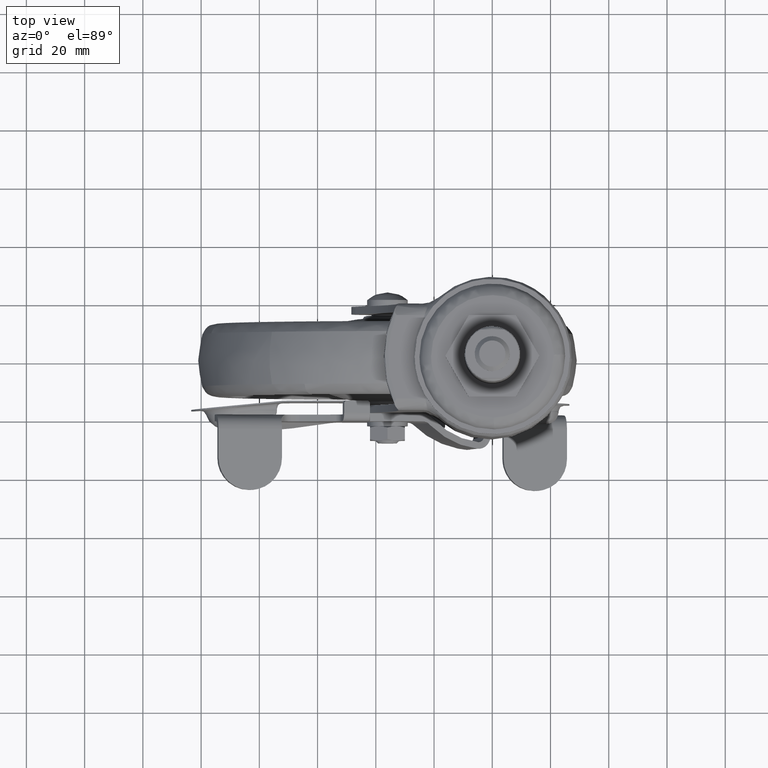
[diagram: clean part render]
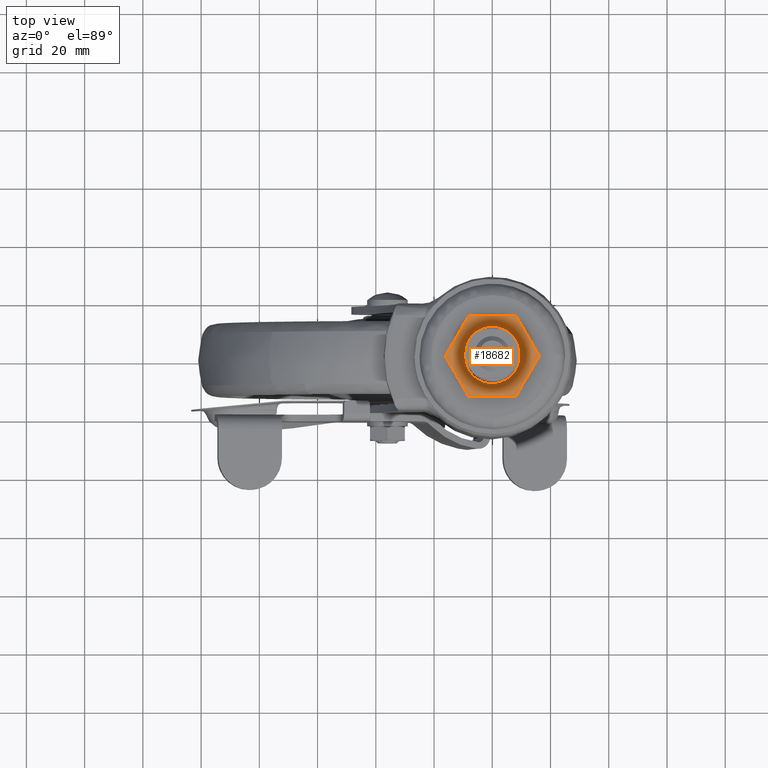
[diagram: same view with one face highlighted and labeled with its STEP entity id]
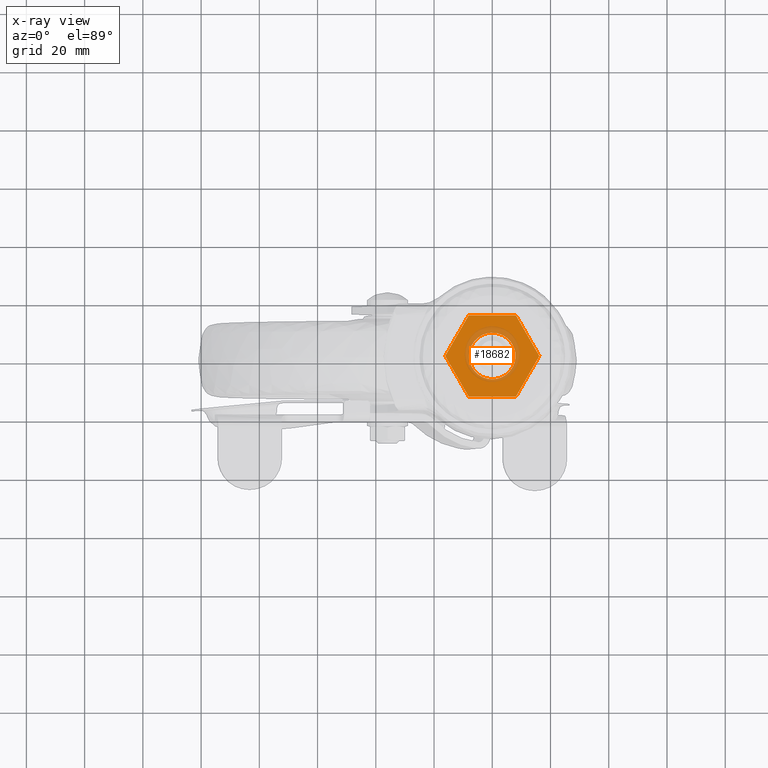
[diagram: x-ray of the same camera — body ghosted, the highlighted face saturated]
A machine part, top view. The second image highlights one B-rep face of the part: STEP entity #18682.
The next image is the same camera in x-ray: the body ghosted, the highlighted face saturated — about 18% of this face is hidden behind the body in this view.
In plain terms, the highlighted face is a freeform B-spline surface patch.
Its self-contained STEP definition (entity closure, byte-faithful):
#17958=CARTESIAN_POINT('',(-0.200789467446222,7.987476709836662,1.155402E-013));
#17959=VERTEX_POINT('',#17958);
#17960=CARTESIAN_POINT('',(7.990000000000000,0.0,0.0));
#17961=VERTEX_POINT('',#17960);
#17962=CARTESIAN_POINT('',(-0.200789467446222,7.987476709836662,1.155402E-013));
#17963=CARTESIAN_POINT('',(-0.100410590577392,7.990000000000000,1.136868E-013));
#17964=CARTESIAN_POINT('',(0.0,7.990000000000000,1.136868E-013));
#17965=CARTESIAN_POINT('',(7.990000000000000,7.990000000000000,1.136868E-013));
#17966=CARTESIAN_POINT('',(7.990000000000000,0.0,0.0));
#17974=(BOUNDED_CURVE()B_SPLINE_CURVE(2,(#17962,#17963,#17964,#17965,#17966),.UNSPECIFIED.,.F.,.U.)B_SPLINE_CURVE_WITH_KNOTS((3,2,3),(0.245579891598510,0.250000000000000,0.500000000000000),.UNSPECIFIED.)CURVE()GEOMETRIC_REPRESENTATION_ITEM()RATIONAL_B_SPLINE_CURVE((0.989826157294393,0.994821520891133,1.0,0.707106781186548,1.0))REPRESENTATION_ITEM(''));
#17975=EDGE_CURVE('',#17959,#17961,#17974,.T.);
#17994=CARTESIAN_POINT('',(-7.987476709773507,-0.200789467437675,1.155715E-013));
#17995=VERTEX_POINT('',#17994);
#18009=CARTESIAN_POINT('',(7.990000000000000,0.0,0.0));
#18010=CARTESIAN_POINT('',(7.990000000000000,-7.990000000000000,1.136868E-013));
#18011=CARTESIAN_POINT('',(0.0,-7.990000000000000,1.136868E-013));
#18012=CARTESIAN_POINT('',(-7.791671223066750,-7.990000000000001,1.136868E-013));
#18013=CARTESIAN_POINT('',(-7.987476709773507,-0.200789467437675,1.155715E-013));
#18021=(BOUNDED_CURVE()B_SPLINE_CURVE(2,(#18009,#18010,#18011,#18012,#18013),.UNSPECIFIED.,.F.,.U.)B_SPLINE_CURVE_WITH_KNOTS((3,2,3),(0.500000000000000,0.750000000000000,0.995579891598814),.UNSPECIFIED.)CURVE()GEOMETRIC_REPRESENTATION_ITEM()RATIONAL_B_SPLINE_CURVE((1.0,0.707106781186548,1.0,0.712285260295058,0.989826157295082))REPRESENTATION_ITEM(''));
#18022=EDGE_CURVE('',#17961,#17995,#18021,.T.);
#18044=CARTESIAN_POINT('',(-7.990000000000000,0.0,1.136868E-013));
#18045=VERTEX_POINT('',#18044);
#18046=CARTESIAN_POINT('',(-7.990000000000000,0.0,1.136868E-013));
#18047=CARTESIAN_POINT('',(-7.990000000000000,7.791671223053191,1.136868E-013));
#18048=CARTESIAN_POINT('',(-0.200789467446222,7.987476709836662,1.155402E-013));
#18056=(BOUNDED_CURVE()B_SPLINE_CURVE(2,(#18046,#18047,#18048),.UNSPECIFIED.,.F.,.U.)B_SPLINE_CURVE_WITH_KNOTS((3,3),(0.0,0.245579891598510),.UNSPECIFIED.)CURVE()GEOMETRIC_REPRESENTATION_ITEM()RATIONAL_B_SPLINE_CURVE((1.0,0.712285260295415,0.989826157294393))REPRESENTATION_ITEM(''));
#18057=EDGE_CURVE('',#18045,#17959,#18056,.T.);
#18059=CARTESIAN_POINT('',(-7.987476709773507,-0.200789467437675,1.155715E-013));
#18060=CARTESIAN_POINT('',(-7.989999999999999,-0.100410590570434,1.136868E-013));
#18061=CARTESIAN_POINT('',(-7.990000000000000,0.0,1.136868E-013));
#18069=(BOUNDED_CURVE()B_SPLINE_CURVE(2,(#18059,#18060,#18061),.UNSPECIFIED.,.F.,.U.)B_SPLINE_CURVE_WITH_KNOTS((3,3),(0.995579891598814,1.0),.UNSPECIFIED.)CURVE()GEOMETRIC_REPRESENTATION_ITEM()RATIONAL_B_SPLINE_CURVE((0.989826157295082,0.994821520891490,1.0))REPRESENTATION_ITEM(''));
#18070=EDGE_CURVE('',#17995,#18045,#18069,.T.);
#18500=CARTESIAN_POINT('',(8.082904000000101,-14.0,0.0));
#18501=VERTEX_POINT('',#18500);
#18502=CARTESIAN_POINT('',(16.165808000000101,0.0,0.0));
#18503=VERTEX_POINT('',#18502);
#18504=CARTESIAN_POINT('',(8.082904000000101,-14.0,0.0));
#18505=CARTESIAN_POINT('',(16.165808000000101,0.0,0.0));
#18506=QUASI_UNIFORM_CURVE('',1,(#18504,#18505),.UNSPECIFIED.,.F.,.U.);
#18507=EDGE_CURVE('',#18501,#18503,#18506,.T.);
#18536=CARTESIAN_POINT('',(-8.082903999999900,-14.0,0.0));
#18537=VERTEX_POINT('',#18536);
#18538=CARTESIAN_POINT('',(-8.082903999999900,-14.0,0.0));
#18539=CARTESIAN_POINT('',(8.082904000000101,-14.0,0.0));
#18540=QUASI_UNIFORM_CURVE('',1,(#18538,#18539),.UNSPECIFIED.,.F.,.U.);
#18541=EDGE_CURVE('',#18537,#18501,#18540,.T.);
#18564=CARTESIAN_POINT('',(-16.165807000000001,0.0,0.0));
#18565=VERTEX_POINT('',#18564);
#18566=CARTESIAN_POINT('',(-16.165807000000001,0.0,0.0));
#18567=CARTESIAN_POINT('',(-8.082903999999900,-14.0,0.0));
#18568=QUASI_UNIFORM_CURVE('',1,(#18566,#18567),.UNSPECIFIED.,.F.,.U.);
#18569=EDGE_CURVE('',#18565,#18537,#18568,.T.);
#18592=CARTESIAN_POINT('',(-8.082903999999900,14.0,0.0));
#18593=VERTEX_POINT('',#18592);
#18594=CARTESIAN_POINT('',(-8.082903999999900,14.0,0.0));
#18595=CARTESIAN_POINT('',(-16.165807000000001,0.0,0.0));
#18596=QUASI_UNIFORM_CURVE('',1,(#18594,#18595),.UNSPECIFIED.,.F.,.U.);
#18597=EDGE_CURVE('',#18593,#18565,#18596,.T.);
#18620=CARTESIAN_POINT('',(8.082904000000101,14.0,0.0));
#18621=VERTEX_POINT('',#18620);
#18622=CARTESIAN_POINT('',(8.082904000000101,14.0,0.0));
#18623=CARTESIAN_POINT('',(-8.082903999999900,14.0,0.0));
#18624=QUASI_UNIFORM_CURVE('',1,(#18622,#18623),.UNSPECIFIED.,.F.,.U.);
#18625=EDGE_CURVE('',#18621,#18593,#18624,.T.);
#18648=CARTESIAN_POINT('',(16.165808000000101,0.0,0.0));
#18649=CARTESIAN_POINT('',(8.082904000000101,14.0,0.0));
#18650=QUASI_UNIFORM_CURVE('',1,(#18648,#18649),.UNSPECIFIED.,.F.,.U.);
#18651=EDGE_CURVE('',#18503,#18621,#18650,.T.);
#18663=CARTESIAN_POINT('',(-17.780772017103271,-15.398599945730570,0.0));
#18664=CARTESIAN_POINT('',(17.780773017103371,-15.398599945730570,0.0));
#18665=CARTESIAN_POINT('',(-17.780772017103271,15.398600696749090,0.0));
#18666=CARTESIAN_POINT('',(17.780773017103371,15.398600696749090,0.0));
#18667=B_SPLINE_SURFACE_WITH_KNOTS('',1,1,((#18663,#18665),(#18664,#18666)),.UNSPECIFIED.,.F.,.F.,.U.,(2,2),(2,2),(0.0,35.561545034206631),(0.0,30.797200642479659),.UNSPECIFIED.);
#18668=ORIENTED_EDGE('',*,*,#18651,.T.);
#18669=ORIENTED_EDGE('',*,*,#18625,.T.);
#18670=ORIENTED_EDGE('',*,*,#18597,.T.);
#18671=ORIENTED_EDGE('',*,*,#18569,.T.);
#18672=ORIENTED_EDGE('',*,*,#18541,.T.);
#18673=ORIENTED_EDGE('',*,*,#18507,.T.);
#18674=EDGE_LOOP('',(#18668,#18669,#18670,#18671,#18672,#18673));
#18675=FACE_OUTER_BOUND('',#18674,.T.);
#18676=ORIENTED_EDGE('',*,*,#18022,.T.);
#18677=ORIENTED_EDGE('',*,*,#18070,.T.);
#18678=ORIENTED_EDGE('',*,*,#18057,.T.);
#18679=ORIENTED_EDGE('',*,*,#17975,.T.);
#18680=EDGE_LOOP('',(#18676,#18677,#18678,#18679));
#18681=FACE_BOUND('',#18680,.T.);
#18682=ADVANCED_FACE('',(#18675,#18681),#18667,.T.);